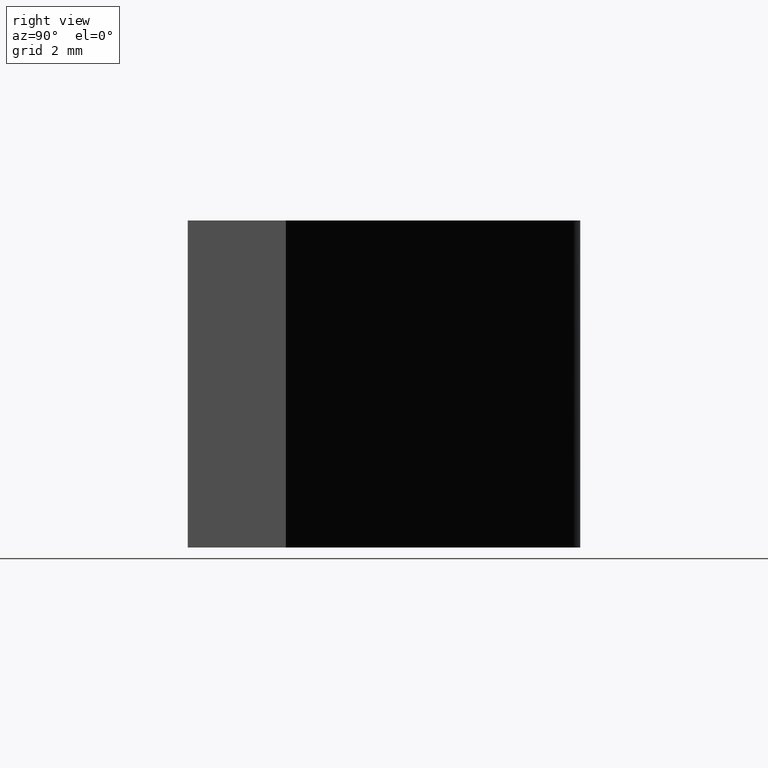
[diagram: clean part render]
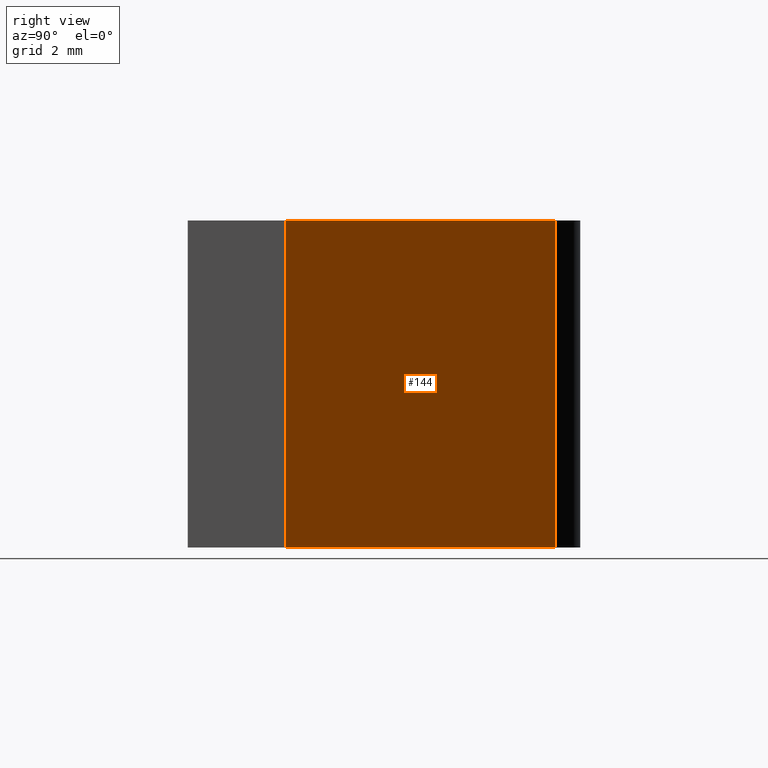
[diagram: same view with one face highlighted and labeled with its STEP entity id]
A machine part, right view. The second image highlights one B-rep face of the part: STEP entity #144.
In plain terms, the highlighted planar face has unit normal (0.7883, 0.6152, 0).
Its self-contained STEP definition (entity closure, byte-faithful):
#21=FACE_OUTER_BOUND('',#29,.T.);
#29=EDGE_LOOP('',(#115,#116,#117,#118));
#39=LINE('',#232,#55);
#45=LINE('',#246,#61);
#46=LINE('',#249,#62);
#47=LINE('',#250,#63);
#55=VECTOR('',#191,10.);
#61=VECTOR('',#205,10.);
#62=VECTOR('',#208,10.);
#63=VECTOR('',#209,10.);
#68=VERTEX_POINT('',#222);
#72=VERTEX_POINT('',#230);
#76=VERTEX_POINT('',#244);
#77=VERTEX_POINT('',#248);
#84=EDGE_CURVE('',#68,#72,#39,.T.);
#91=EDGE_CURVE('',#76,#72,#45,.T.);
#92=EDGE_CURVE('',#76,#77,#46,.T.);
#93=EDGE_CURVE('',#77,#68,#47,.T.);
#115=ORIENTED_EDGE('',*,*,#92,.T.);
#116=ORIENTED_EDGE('',*,*,#93,.T.);
#117=ORIENTED_EDGE('',*,*,#84,.T.);
#118=ORIENTED_EDGE('',*,*,#91,.F.);
#136=PLANE('',#177);
#144=ADVANCED_FACE('',(#21),#136,.T.);
#177=AXIS2_PLACEMENT_3D('',#247,#206,#207);
#191=DIRECTION('',(-0.615242938683933,0.788337571348441,0.));
#205=DIRECTION('',(0.,0.,-1.));
#206=DIRECTION('center_axis',(0.788337571348441,0.615242938683933,0.));
#207=DIRECTION('ref_axis',(0.,0.,-1.));
#208=DIRECTION('',(0.615242938683933,-0.788337571348441,0.));
#209=DIRECTION('',(0.,0.,-1.));
#222=CARTESIAN_POINT('',(8.,3.,-5.));
#230=CARTESIAN_POINT('',(1.57667514269688,11.2304858773679,-5.));
#232=CARTESIAN_POINT('',(1.57667514269688,11.2304858773679,-5.));
#244=CARTESIAN_POINT('',(1.57667514269688,11.2304858773679,5.));
#246=CARTESIAN_POINT('',(1.57667514269688,11.2304858773679,0.));
#247=CARTESIAN_POINT('Origin',(1.57667514269688,11.2304858773679,0.));
#248=CARTESIAN_POINT('',(8.,3.,5.));
#249=CARTESIAN_POINT('',(1.57667514269688,11.2304858773679,5.));
#250=CARTESIAN_POINT('',(8.,3.,0.));